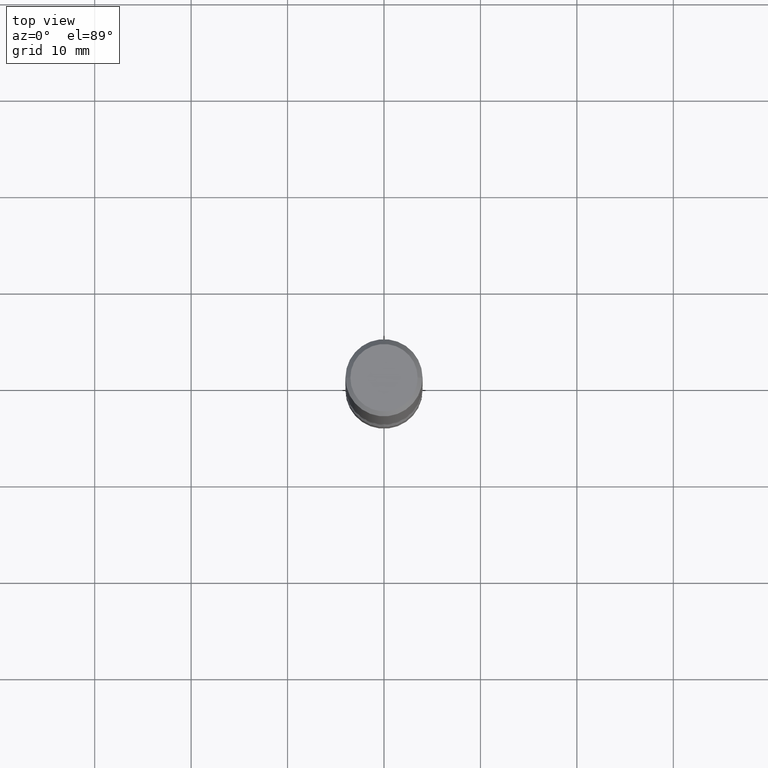
[diagram: clean part render]
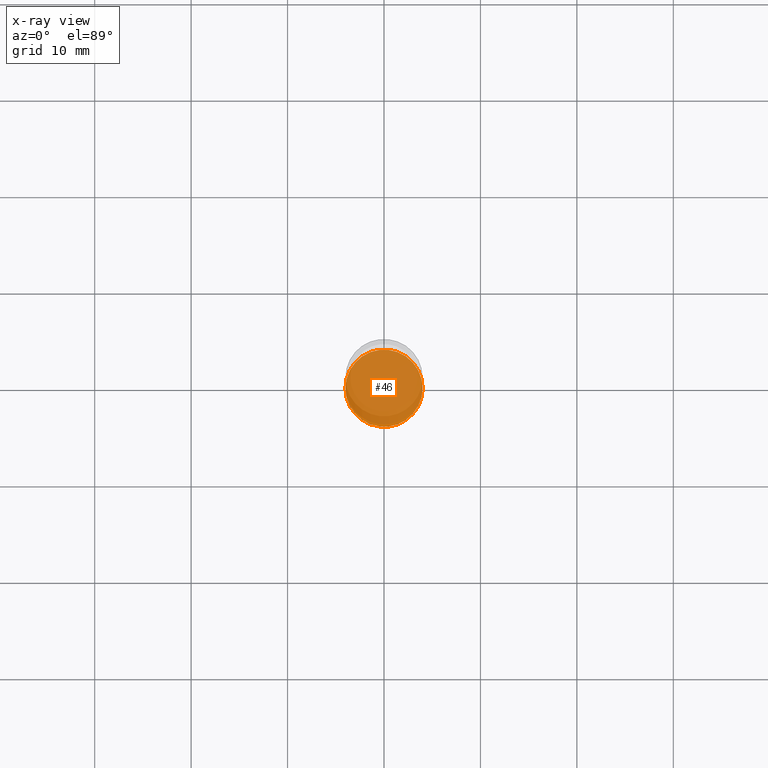
[diagram: x-ray — body ghosted, one internal face saturated and labeled with its STEP entity id]
A machine part, top view, then the same camera in x-ray: the body is ghosted and one INTERNAL B-rep face — a face not visible from any outside direction — is saturated and labeled: STEP entity #46.
In plain terms, the highlighted planar face has unit normal (0, -0, -1).
Its self-contained STEP definition (entity closure, byte-faithful):
#6 = CARTESIAN_POINT ( 'NONE',  ( 6.065740826861612418E-29, -8.660270312866537270E-15, -2.480399999999999494 ) ) ;
#10 = CARTESIAN_POINT ( 'NONE',  ( 0.1575000000000001399, -9.760086934602125539E-15, -2.480399999999999494 ) ) ;
#22 = AXIS2_PLACEMENT_3D ( 'NONE', #6, #94, #439 ) ;
#34 = CARTESIAN_POINT ( 'NONE',  ( -0.1575000000000001399, -8.297071213903919899E-15, -2.480399999999999494 ) ) ;
#38 = FACE_OUTER_BOUND ( 'NONE', #113, .T. ) ;
#46 = ADVANCED_FACE ( 'NONE', ( #38 ), #380, .F. ) ;
#94 = DIRECTION ( 'NONE',  ( -2.445468806185136597E-29, 3.491481338843145583E-15, 1.000000000000000000 ) ) ;
#113 = EDGE_LOOP ( 'NONE', ( #525, #151 ) ) ;
#116 = VERTEX_POINT ( 'NONE', #34 ) ;
#123 = CARTESIAN_POINT ( 'NONE',  ( 6.065740826861612418E-29, -8.660270312866537270E-15, -2.480399999999999494 ) ) ;
#151 = ORIENTED_EDGE ( 'NONE', *, *, #428, .T. ) ;
#258 = CIRCLE ( 'NONE', #339, 0.1575000000000001399 ) ;
#263 = DIRECTION ( 'NONE',  ( -2.445468806185136597E-29, 3.491481338843145583E-15, 1.000000000000000000 ) ) ;
#266 = CARTESIAN_POINT ( 'NONE',  ( 6.065740826861612418E-29, -8.660270312866537270E-15, -2.480399999999999494 ) ) ;
#301 = AXIS2_PLACEMENT_3D ( 'NONE', #123, #422, #502 ) ;
#312 = CIRCLE ( 'NONE', #22, 0.1575000000000001399 ) ;
#339 = AXIS2_PLACEMENT_3D ( 'NONE', #266, #263, #520 ) ;
#380 = PLANE ( 'NONE',  #301 ) ;
#408 = VERTEX_POINT ( 'NONE', #10 ) ;
#422 = DIRECTION ( 'NONE',  ( 2.438088387897960049E-29, -3.491481338843145188E-15, -1.000000000000000000 ) ) ;
#428 = EDGE_CURVE ( 'NONE', #116, #408, #258, .T. ) ;
#439 = DIRECTION ( 'NONE',  ( 1.000000000000000000, -6.982962677686268288E-15, 0.000000000000000000 ) ) ;
#489 = EDGE_CURVE ( 'NONE', #408, #116, #312, .T. ) ;
#502 = DIRECTION ( 'NONE',  ( -1.000000000000000000, 6.982962677686265922E-15, -4.876176775795935793E-29 ) ) ;
#520 = DIRECTION ( 'NONE',  ( 1.000000000000000000, -6.982962677686268288E-15, 0.000000000000000000 ) ) ;
#525 = ORIENTED_EDGE ( 'NONE', *, *, #489, .T. ) ;